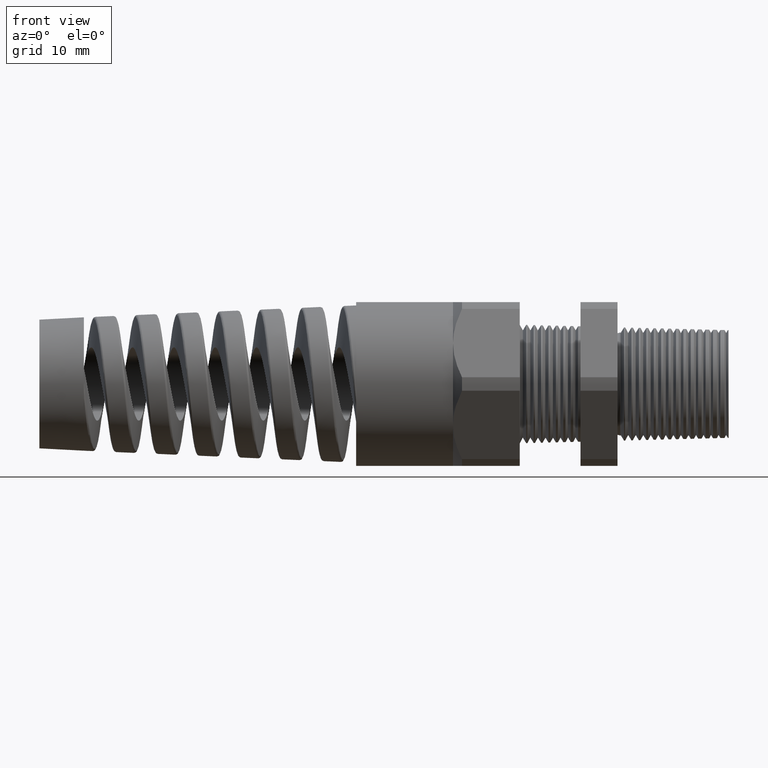
[diagram: clean part render]
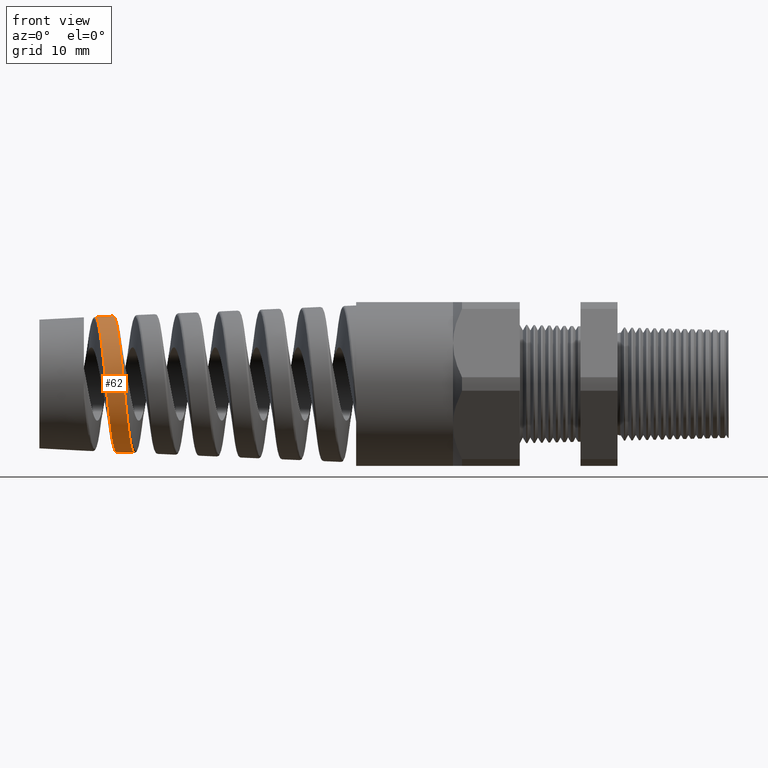
[diagram: same view with one face highlighted and labeled with its STEP entity id]
A machine part, front view. The second image highlights one B-rep face of the part: STEP entity #62.
In plain terms, the highlighted conical surface has half-angle 2.5 deg.
Its self-contained STEP definition (entity closure, byte-faithful):
#5 = VERTEX_POINT ( 'NONE', #2195 ) ;
#11 = VERTEX_POINT ( 'NONE', #2232 ) ;
#13 = EDGE_CURVE ( 'NONE', #106, #11, #2225, .T. ) ;
#61 = EDGE_LOOP ( 'NONE', ( #14491, #14493, #14445, #14466 ) ) ;
#62 = ADVANCED_FACE ( 'NONE', ( #2425 ), #2420, .T. ) ;
#106 = VERTEX_POINT ( 'NONE', #2651 ) ;
#110 = VERTEX_POINT ( 'NONE', #2648 ) ;
#2195 = CARTESIAN_POINT ( 'NONE',  ( -2.986459083410657000, 5.820025378676954600E-014, 0.3609309968125799500 ) ) ;
#2224 = CARTESIAN_POINT ( 'NONE',  ( -1.289999999999999600, 0.0000000000000000000, -0.4349999999999998900 ) ) ;
#2225 = LINE ( 'NONE', #2224, #2304 ) ;
#2232 = CARTESIAN_POINT ( 'NONE',  ( -2.876612893237539200, 1.201144067786334600E-012, -0.3657269850504460400 ) ) ;
#2303 = DIRECTION ( 'NONE',  ( 0.9990482215818576900, 0.0000000000000000000, -0.04361938736533630500 ) ) ;
#2304 = VECTOR ( 'NONE', #2303, 39.37007874015748100 ) ;
#2415 = DIRECTION ( 'NONE',  ( 0.0000000000000000000, 0.0000000000000000000, -1.000000000000000000 ) ) ;
#2416 = DIRECTION ( 'NONE',  ( 1.000000000000000000, -0.0000000000000000000, -0.0000000000000000000 ) ) ;
#2417 = CARTESIAN_POINT ( 'NONE',  ( -1.289999999999999600, 0.0000000000000000000, 0.0000000000000000000 ) ) ;
#2418 = AXIS2_PLACEMENT_3D ( 'NONE', #2417, #2416, #2415 ) ;
#2420 = CONICAL_SURFACE ( 'NONE', #2418, 0.4349999999999998900, 0.04363323129985854200 ) ;
#2425 = FACE_OUTER_BOUND ( 'NONE', #61, .T. ) ;
#2648 = CARTESIAN_POINT ( 'NONE',  ( -3.081846308702675100, -4.081312874678848900E-013, 0.3567663006149037200 ) ) ;
#2651 = CARTESIAN_POINT ( 'NONE',  ( -2.971668996706908800, -2.499278125074048900E-016, -0.3615767459437642100 ) ) ;
#13871 = CARTESIAN_POINT ( 'NONE',  ( -2.878897762731702500, -0.02392588679745058900, -0.3656272254939866900 ) ) ;
#13872 = CARTESIAN_POINT ( 'NONE',  ( -2.876612893237539200, 1.201144067786334600E-012, -0.3657269850504460400 ) ) ;
#13873 = B_SPLINE_CURVE_WITH_KNOTS ( 'NONE', 3,
 ( #13872, #13871, #13949, #13948, #13947, #13946, #13945, #13944, #13943, #13942, #13941, #13940, #13939, #13938, #13937, #13936, #13935, #13934, #13933, #13932, #13931, #13930, #13929, #13928, #13927, #13926, #13925, #13924, #13923, #13922, #13921, #13920, #13919, #13918, #13917, #13916, #13915, #13914, #13913, #13912, #13911, #13910, #13909, #13908, #13907, #13906, #13905 ),
 .UNSPECIFIED., .F., .F.,
 ( 4, 2, 2, 2, 2, 2, 2, 2, 2, 1, 2, 2, 2, 2, 2, 2, 2, 2, 2, 2, 2, 2, 2, 4 ),
 ( 0.3350727878333840100, 0.3369012361185422200, 0.3378154602611213600, 0.3387296844037004400, 0.3405581326888587100, 0.3414723568314377800, 0.3423865809740169200, 0.3442150292591751300, 0.3451292534017542700, 0.3460434775443334000, 0.3469577016869124800, 0.3478719258294916100, 0.3497003741146498300, 0.3515288223998080400, 0.3533572706849663100, 0.3542714948275453900, 0.3551857189701245200, 0.3570141672552827300, 0.3588426155404409500, 0.3597568396830200800, 0.3606710638255991600, 0.3624995121107573700, 0.3634137362533365100, 0.3643279603959155800 ),
 .UNSPECIFIED. ) ;
#13905 = CARTESIAN_POINT ( 'NONE',  ( -2.986459083410657000, 5.820025378676954600E-014, 0.3609309968125799500 ) ) ;
#13906 = CARTESIAN_POINT ( 'NONE',  ( -2.985312984832292600, -0.01185010179920898700, 0.3609810365571794500 ) ) ;
#13907 = CARTESIAN_POINT ( 'NONE',  ( -2.984163572795461400, -0.02373312443931895100, 0.3604491061988672200 ) ) ;
#13908 = CARTESIAN_POINT ( 'NONE',  ( -2.981845804627204300, -0.04756581418631668200, 0.3581862542125628900 ) ) ;
#13909 = CARTESIAN_POINT ( 'NONE',  ( -2.980684979629470100, -0.05943666207296349100, 0.3564570269149879800 ) ) ;
#13910 = CARTESIAN_POINT ( 'NONE',  ( -2.977230555513303800, -0.09440473469353433100, 0.3495916754192340800 ) ) ;
#13911 = CARTESIAN_POINT ( 'NONE',  ( -2.974943939608171800, -0.1170711602933600400, 0.3427761701763329900 ) ) ;
#13912 = CARTESIAN_POINT ( 'NONE',  ( -2.971488189246964700, -0.1500920696375131200, 0.3291770374460099600 ) ) ;
#13913 = CARTESIAN_POINT ( 'NONE',  ( -2.970325964385474500, -0.1609910883461775900, 0.3240438726651273000 ) ) ;
#13914 = CARTESIAN_POINT ( 'NONE',  ( -2.968022208887938400, -0.1820515385181448700, 0.3128139366224670900 ) ) ;
#13915 = CARTESIAN_POINT ( 'NONE',  ( -2.966878640425577400, -0.1922372079169764600, 0.3067149618472382300 ) ) ;
#13916 = CARTESIAN_POINT ( 'NONE',  ( -2.963453610415701000, -0.2217837044957471900, 0.2870016633139048600 ) ) ;
#13917 = CARTESIAN_POINT ( 'NONE',  ( -2.961177852694143500, -0.2401438489081161000, 0.2719847279079663500 ) ) ;
#13918 = CARTESIAN_POINT ( 'NONE',  ( -2.956544168737745200, -0.2740771905198294800, 0.2380608791933742100 ) ) ;
#13919 = CARTESIAN_POINT ( 'NONE',  ( -2.954256534891675400, -0.2891251153532594700, 0.2196706142761659100 ) ) ;
#13920 = CARTESIAN_POINT ( 'NONE',  ( -2.950823575315801400, -0.3088433588753453600, 0.1901384221326776800 ) ) ;
#13921 = CARTESIAN_POINT ( 'NONE',  ( -2.949678571737359700, -0.3149425633394384900, 0.1799618716495983700 ) ) ;
#13922 = CARTESIAN_POINT ( 'NONE',  ( -2.947379766060385100, -0.3261733464072172400, 0.1589302546261832400 ) ) ;
#13923 = CARTESIAN_POINT ( 'NONE',  ( -2.946220582617744600, -0.3313178044190587800, 0.1480302893449041100 ) ) ;
#13924 = CARTESIAN_POINT ( 'NONE',  ( -2.942781002274104600, -0.3449593291223470000, 0.1149887345876155900 ) ) ;
#13925 = CARTESIAN_POINT ( 'NONE',  ( -2.940517170782575000, -0.3517993577299196600, 0.09232513595848616800 ) ) ;
#13926 = CARTESIAN_POINT ( 'NONE',  ( -2.935949518234527200, -0.3610240504799260300, 0.04575099052274754500 ) ) ;
#13927 = CARTESIAN_POINT ( 'NONE',  ( -2.933629283142997300, -0.3633655287767286700, 0.02166524411403489600 ) ) ;
#13928 = CARTESIAN_POINT ( 'NONE',  ( -2.929056157620374200, -0.3632977784997791800, -0.02576251951380475700 ) ) ;
#13929 = CARTESIAN_POINT ( 'NONE',  ( -2.926782386073612900, -0.3609646802329815600, -0.04932848394543172500 ) ) ;
#13930 = CARTESIAN_POINT ( 'NONE',  ( -2.923340822818850400, -0.3539483129587331900, -0.08444629247839775800 ) ) ;
#13931 = CARTESIAN_POINT ( 'NONE',  ( -2.922186143590782800, -0.3510073801097899900, -0.09612612297395589600 ) ) ;
#13932 = CARTESIAN_POINT ( 'NONE',  ( -2.919902715303357900, -0.3440679120431799400, -0.1188958409769112200 ) ) ;
#13933 = CARTESIAN_POINT ( 'NONE',  ( -2.917632469332012600, -0.3360499622047357100, -0.1412067520018023300 ) ) ;
#13934 = CARTESIAN_POINT ( 'NONE',  ( -2.915363842064783800, -0.3259132179130037600, -0.1626137422786893000 ) ) ;
#13935 = CARTESIAN_POINT ( 'NONE',  ( -2.913084167005142200, -0.3147059521526222000, -0.1835627827463918400 ) ) ;
#13936 = CARTESIAN_POINT ( 'NONE',  ( -2.911933871298930200, -0.3085380332275644600, -0.1938508961275652600 ) ) ;
#13937 = CARTESIAN_POINT ( 'NONE',  ( -2.908483611084250200, -0.2885694232556119700, -0.2236988971856857000 ) ) ;
#13938 = CARTESIAN_POINT ( 'NONE',  ( -2.906213528560101200, -0.2735117800877930900, -0.2420021326467440600 ) ) ;
#13939 = CARTESIAN_POINT ( 'NONE',  ( -2.902799542090746900, -0.2483942682023627400, -0.2671363221159837600 ) ) ;
#13940 = CARTESIAN_POINT ( 'NONE',  ( -2.901660956841923600, -0.2395968076399567200, -0.2751248691075889300 ) ) ;
#13941 = CARTESIAN_POINT ( 'NONE',  ( -2.899371183716239900, -0.2211299182345156700, -0.2903012238144709300 ) ) ;
#13942 = CARTESIAN_POINT ( 'NONE',  ( -2.898221610627509800, -0.2114712448936293700, -0.2974699043769710700 ) ) ;
#13943 = CARTESIAN_POINT ( 'NONE',  ( -2.894809579858000200, -0.1818193652334359500, -0.3173059795812021000 ) ) ;
#13944 = CARTESIAN_POINT ( 'NONE',  ( -2.892558438576145400, -0.1609589431399997000, -0.3284888888073058100 ) ) ;
#13945 = CARTESIAN_POINT ( 'NONE',  ( -2.889145443094022400, -0.1280387520550496600, -0.3422041492205023500 ) ) ;
#13946 = CARTESIAN_POINT ( 'NONE',  ( -2.887995797742972200, -0.1167315410139952300, -0.3462797545275291300 ) ) ;
#13947 = CARTESIAN_POINT ( 'NONE',  ( -2.885704182419221600, -0.09386143959138935900, -0.3532690854556452800 ) ) ;
#13948 = CARTESIAN_POINT ( 'NONE',  ( -2.884565711258327600, -0.08233611737025381400, -0.3561789771141915500 ) ) ;
#13949 = CARTESIAN_POINT ( 'NONE',  ( -2.881157790545146600, -0.04749819341801046800, -0.3632029376569995700 ) ) ;
#14236 = CARTESIAN_POINT ( 'NONE',  ( -3.015091527144940600, -0.3401371457092719500, -0.1175377799143132500 ) ) ;
#14237 = CARTESIAN_POINT ( 'NONE',  ( -3.017378853049577500, -0.3469880204645746100, -0.09505730306129243900 ) ) ;
#14238 = CARTESIAN_POINT ( 'NONE',  ( -3.018533735002232100, -0.3498908096258106500, -0.08353676049770394900 ) ) ;
#14239 = CARTESIAN_POINT ( 'NONE',  ( -3.021987131958373300, -0.3568402780250795000, -0.04876234396117830300 ) ) ;
#14240 = CARTESIAN_POINT ( 'NONE',  ( -3.024260251382051600, -0.3591424990383203000, -0.02545436493591862700 ) ) ;
#14241 = CARTESIAN_POINT ( 'NONE',  ( -3.027694854185044400, -0.3591910390310474900, 0.009683624107967589800 ) ) ;
#14242 = CARTESIAN_POINT ( 'NONE',  ( -3.028843698562570200, -0.3586357335721251400, 0.02142585200588338600 ) ) ;
#14243 = CARTESIAN_POINT ( 'NONE',  ( -3.031159359832452400, -0.3563477711064354000, 0.04497025542093769500 ) ) ;
#14244 = CARTESIAN_POINT ( 'NONE',  ( -3.032320189078903500, -0.3546148218433365900, 0.05671034010874631500 ) ) ;
#14245 = CARTESIAN_POINT ( 'NONE',  ( -3.035768034800271100, -0.3477677639934769200, 0.09127505528422545600 ) ) ;
#14246 = CARTESIAN_POINT ( 'NONE',  ( -3.038040182689242500, -0.3410020369069392500, 0.1136732026867590100 ) ) ;
#14247 = CARTESIAN_POINT ( 'NONE',  ( -3.041484517060737900, -0.3275364382827815100, 0.1462906242617263700 ) ) ;
#14248 = CARTESIAN_POINT ( 'NONE',  ( -3.042645069490677900, -0.3224578313739294700, 0.1570561747414268000 ) ) ;
#14249 = CARTESIAN_POINT ( 'NONE',  ( -3.044951089916683600, -0.3113391512289061500, 0.1778804452874604700 ) ) ;
#14250 = CARTESIAN_POINT ( 'NONE',  ( -3.046097338244950300, -0.3053034408859674500, 0.1879498765048321600 ) ) ;
#14251 = CARTESIAN_POINT ( 'NONE',  ( -3.049533793982908600, -0.2858027722707527400, 0.2171535276096526700 ) ) ;
#14252 = CARTESIAN_POINT ( 'NONE',  ( -3.051822035015953700, -0.2709577744760463500, 0.2352927996247570500 ) ) ;
#14253 = CARTESIAN_POINT ( 'NONE',  ( -3.056475324520052900, -0.2374437678366038400, 0.2688044206388300300 ) ) ;
#14254 = CARTESIAN_POINT ( 'NONE',  ( -3.058772829173780600, -0.2192296923651590500, 0.2837039435913291100 ) ) ;
#14255 = CARTESIAN_POINT ( 'NONE',  ( -3.062209726869667300, -0.1900305231823404600, 0.3031830575173691800 ) ) ;
#14256 = CARTESIAN_POINT ( 'NONE',  ( -3.063355896295775000, -0.1799705841504610200, 0.3092057654869125900 ) ) ;
#14257 = CARTESIAN_POINT ( 'NONE',  ( -3.065661970496603500, -0.1591844600919188100, 0.3202903831016090700 ) ) ;
#14258 = CARTESIAN_POINT ( 'NONE',  ( -3.066827204596732900, -0.1484062169782166500, 0.3253690008982559900 ) ) ;
#14259 = CARTESIAN_POINT ( 'NONE',  ( -3.070291676662272100, -0.1157168600951541400, 0.3388325651909686000 ) ) ;
#14260 = CARTESIAN_POINT ( 'NONE',  ( -3.072578184810320400, -0.09330373602620560500, 0.3455660400869851600 ) ) ;
#14261 = CARTESIAN_POINT ( 'NONE',  ( -3.077194212124696000, -0.04726144102119328400, 0.3546038684011060800 ) ) ;
#14262 = CARTESIAN_POINT ( 'NONE',  ( -3.079541571074952100, -0.02344510094447778100, 0.3568669276328599900 ) ) ;
#14263 = CARTESIAN_POINT ( 'NONE',  ( -3.081846308702675100, -4.081312874678848900E-013, 0.3567663006149037200 ) ) ;
#14264 = B_SPLINE_CURVE_WITH_KNOTS ( 'NONE', 3,
 ( #14263, #14262, #14261, #14260, #14259, #14258, #14257, #14256, #14255, #14254, #14253, #14252, #14251, #14250, #14249, #14248, #14247, #14246, #14245, #14244, #14243, #14242, #14241, #14240, #14239, #14238, #14237, #14236, #14316, #14315, #14314, #14313, #14312, #14311, #14310, #14309, #14308, #14307, #14306, #14305, #14304, #14303, #14302, #14301, #14300, #14299, #14298, #14297 ),
 .UNSPECIFIED., .F., .F.,
 ( 4, 2, 2, 2, 2, 2, 2, 2, 2, 2, 2, 2, 2, 2, 2, 2, 2, 2, 2, 2, 2, 2, 2, 4 ),
 ( 0.01610419099828326600, 0.01791432023578262700, 0.01972444947328199200, 0.02062951409203167200, 0.02153457871078135600, 0.02334470794828072400, 0.02515483718578009200, 0.02605990180452977600, 0.02696496642327946000, 0.02877509566077882800, 0.02968016027952851500, 0.03058522489827819600, 0.03239535413577755700, 0.03330041875452724500, 0.03420548337327691800, 0.03511054799202660600, 0.03601561261077627900, 0.03782574184827564000, 0.03873080646702533500, 0.03963587108577501500, 0.04144600032327439000, 0.04235106494202407800, 0.04325612956077376500, 0.04506625879827313300 ),
 .UNSPECIFIED. ) ;
#14277 = VECTOR ( 'NONE', #14356, 39.37007874015748100 ) ;
#14278 = CARTESIAN_POINT ( 'NONE',  ( -1.289999999999999600, 5.327213576290984500E-017, 0.4349999999999998900 ) ) ;
#14279 = LINE ( 'NONE', #14278, #14277 ) ;
#14297 = CARTESIAN_POINT ( 'NONE',  ( -2.971668996706908800, -2.499278125074048900E-016, -0.3615767459437642100 ) ) ;
#14298 = CARTESIAN_POINT ( 'NONE',  ( -2.973962744921114300, -0.02369558581851888600, -0.3614765987339372800 ) ) ;
#14299 = CARTESIAN_POINT ( 'NONE',  ( -2.976223284882434600, -0.04701240055547253200, -0.3590707631067781600 ) ) ;
#14300 = CARTESIAN_POINT ( 'NONE',  ( -2.979633850537724900, -0.08143274312392992400, -0.3521251076548098100 ) ) ;
#14301 = CARTESIAN_POINT ( 'NONE',  ( -2.980773819837409200, -0.09281306955147232400, -0.3492497628575637600 ) ) ;
#14302 = CARTESIAN_POINT ( 'NONE',  ( -2.983070149896955800, -0.1153818809949338200, -0.3423510927613704900 ) ) ;
#14303 = CARTESIAN_POINT ( 'NONE',  ( -2.984228080057119500, -0.1265825511619955700, -0.3383146304219564200 ) ) ;
#14304 = CARTESIAN_POINT ( 'NONE',  ( -2.987663759738735000, -0.1591628058270058200, -0.3247369868819278100 ) ) ;
#14305 = CARTESIAN_POINT ( 'NONE',  ( -2.989925208791895300, -0.1797810096544228100, -0.3136753575119000100 ) ) ;
#14306 = CARTESIAN_POINT ( 'NONE',  ( -2.993343998490684200, -0.2090577810613686000, -0.2940867134694642400 ) ) ;
#14307 = CARTESIAN_POINT ( 'NONE',  ( -2.994492868030127000, -0.2185767892152366600, -0.2870232994499886100 ) ) ;
#14308 = CARTESIAN_POINT ( 'NONE',  ( -2.996791086741669400, -0.2368650494168696400, -0.2719940857350984800 ) ) ;
#14309 = CARTESIAN_POINT ( 'NONE',  ( -2.997932166760176400, -0.2455712002160139500, -0.2640868744559865500 ) ) ;
#14310 = CARTESIAN_POINT ( 'NONE',  ( -3.001349668355029800, -0.2704134182756438600, -0.2392235416727424600 ) ) ;
#14311 = CARTESIAN_POINT ( 'NONE',  ( -3.003620684218736500, -0.2852851355744532900, -0.2211363894435994200 ) ) ;
#14312 = CARTESIAN_POINT ( 'NONE',  ( -3.007079065280351000, -0.3049893000716168400, -0.1916850304190290400 ) ) ;
#14313 = CARTESIAN_POINT ( 'NONE',  ( -3.008239077013526300, -0.3111057353319644500, -0.1814857311623071200 ) ) ;
#14314 = CARTESIAN_POINT ( 'NONE',  ( -3.010533840708184100, -0.3221957995746812000, -0.1607532022338236100 ) ) ;
#14315 = CARTESIAN_POINT ( 'NONE',  ( -3.011674352095600900, -0.3272072761889560100, -0.1501663080046234900 ) ) ;
#14316 = CARTESIAN_POINT ( 'NONE',  ( -3.013953074103689300, -0.3361779603620487200, -0.1285585885856857800 ) ) ;
#14356 = DIRECTION ( 'NONE',  ( 0.9990482215818576900, 5.341834311772761000E-018, 0.04361938736533630500 ) ) ;
#14445 = ORIENTED_EDGE ( 'NONE', *, *, #13, .T. ) ;
#14465 = EDGE_CURVE ( 'NONE', #11, #5, #13873, .T. ) ;
#14466 = ORIENTED_EDGE ( 'NONE', *, *, #14465, .T. ) ;
#14491 = ORIENTED_EDGE ( 'NONE', *, *, #14505, .F. ) ;
#14493 = ORIENTED_EDGE ( 'NONE', *, *, #14494, .T. ) ;
#14494 = EDGE_CURVE ( 'NONE', #110, #106, #14264, .T. ) ;
#14505 = EDGE_CURVE ( 'NONE', #110, #5, #14279, .T. ) ;